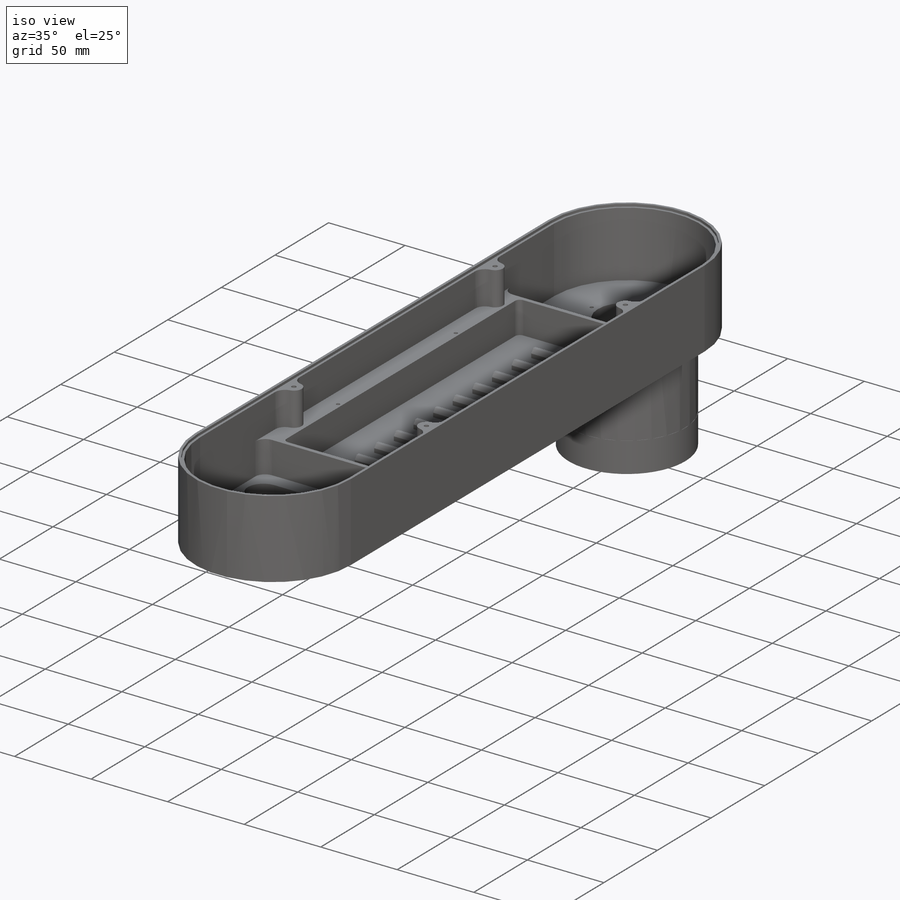
[diagram: iso view]
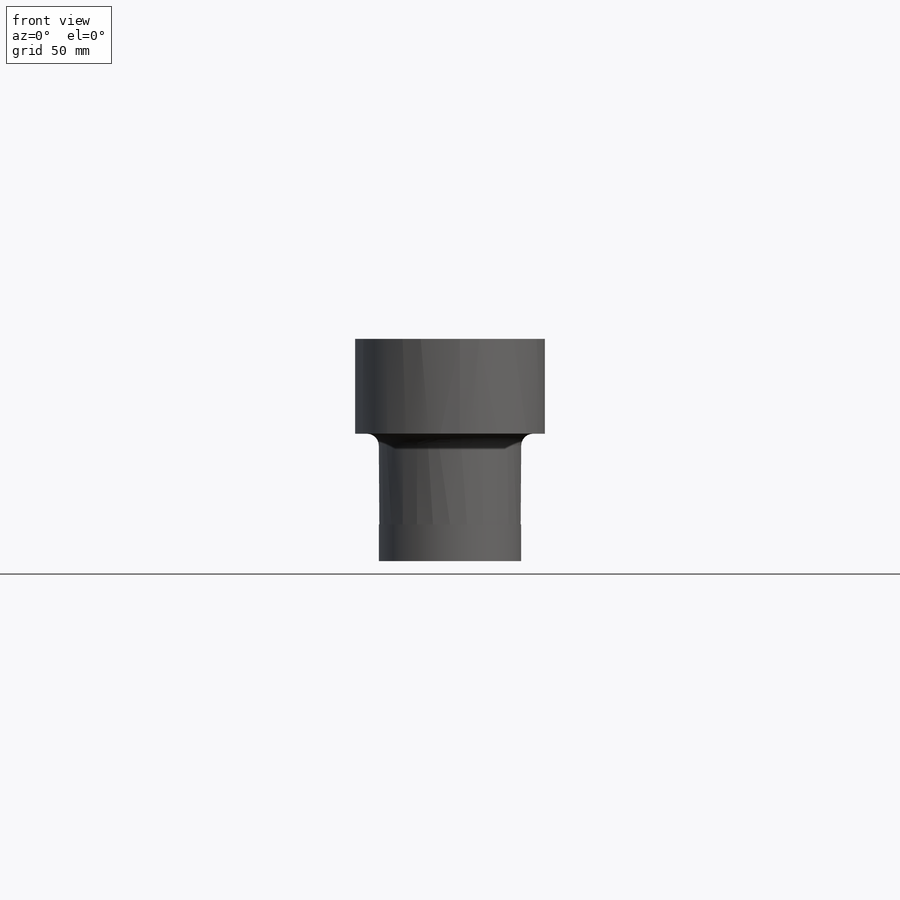
[diagram: front view]
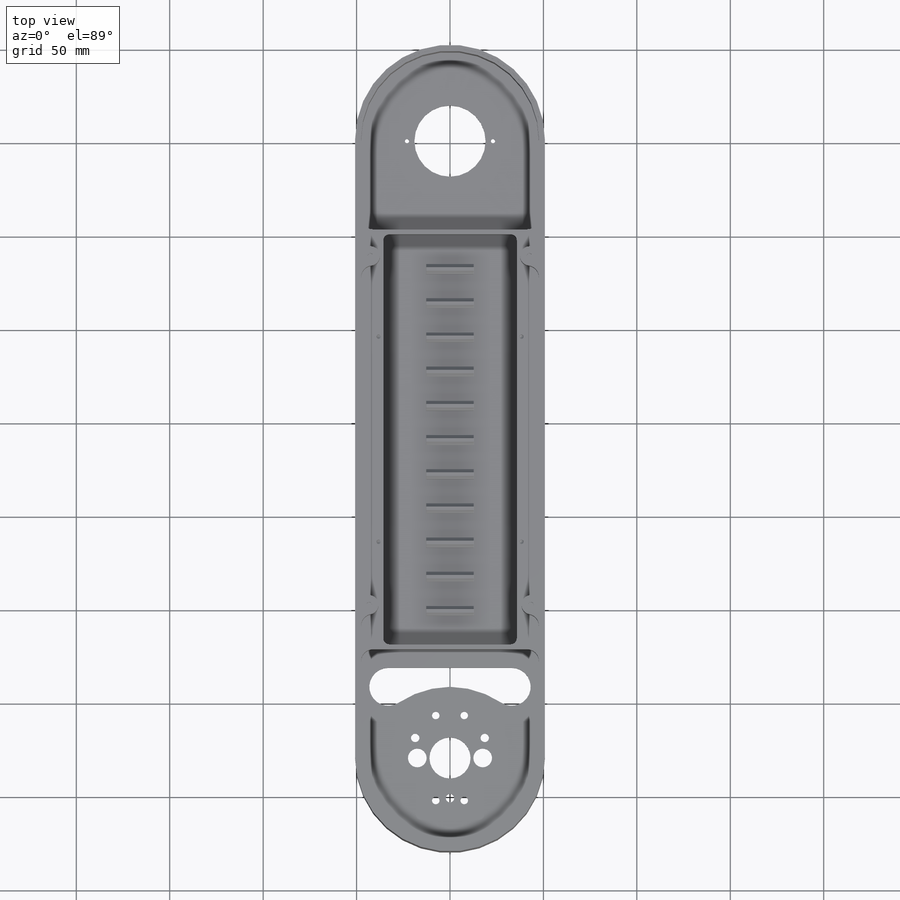
[diagram: top view]
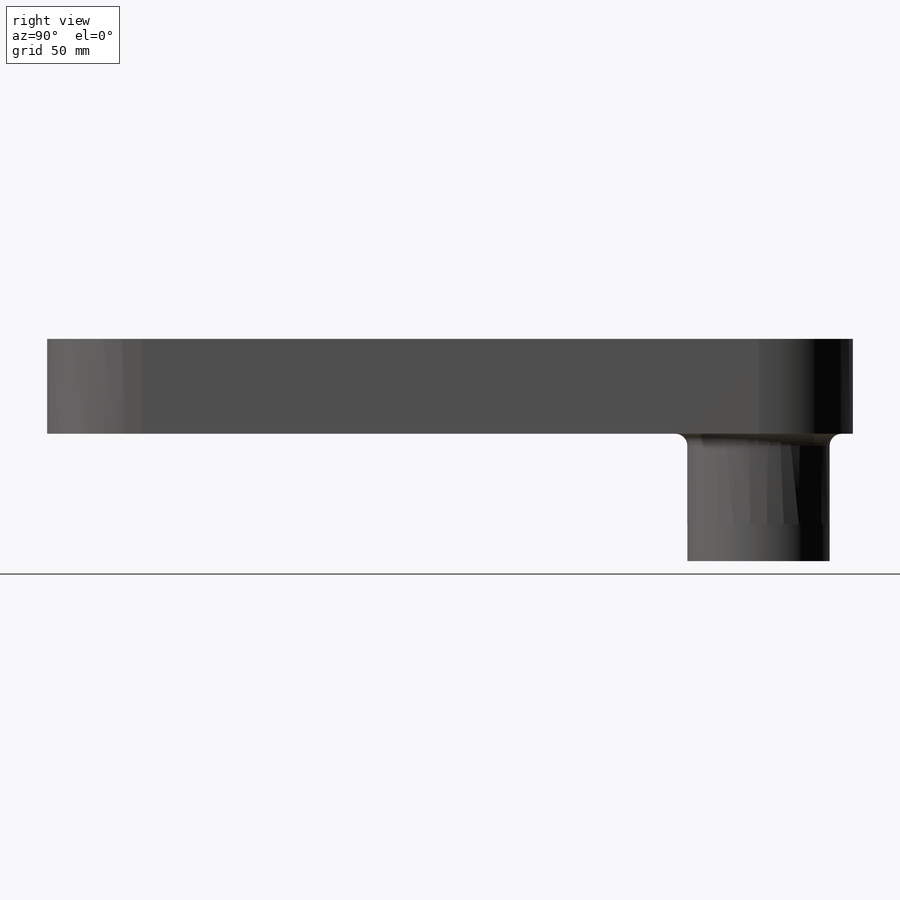
[diagram: right view]
SOLIDWORKS PART (.sldprt)
format: sldprt  version: not decoded by parser v0  size: 1,541,632 bytes
history: native  units: mm
features: sketch x26, thread x15, extrude x11, cut_extrude x10, fillet x8, plane x4, boolean_combine x2, mirror x2, material x1, shell x1, chamfer x1, hole x1, pattern_linear x1, move_body x1 + 1 further entry (+16 scaffold rows collapsed; 5 parser-record rows omitted)
feature tree (106):
  scaffold x16  (default folders/planes/origin — collapsed)
  material  "ABS"
  sketch  "Sketch1"  dims[D1=69.85mm D2=3.175mm]
  extrude  "Boss-Extrude1"  Depth=51.435mm
  sketch  "Sketch6"  dims[D1=0.0mm D2=0.0mm]
  extrude  "Boss-Extrude5"  Depth=6.096mm
  plane  "Plane2"  Offset=29.21mm
  sketch  "Sketch12"  dims[D1=50.8mm D2=0.0mm]
  extrude  "Boss-Extrude8"  [1 undecoded]
  sketch  "Sketch2"  dims[D1=38.1mm D2=0.0mm]
  extrude  "Boss-Extrude2"  Depth=6.35mm
  plane  "Plane1"  Offset=24.765mm
  sketch  "Sketch4"  dims[D1=53.8988mm]
  cut_extrude  "Cut-Extrude1"  Depth=1.7272mm
  sketch  "Sketch5"  dims[D1=2.2606mm D2=46.0248mm D3=23.0124mm D4=6.35mm D5=3.175mm D6=3.175mm]
  cut_extrude  "Cut-Extrude5"  [1 undecoded]
  thread  "Cosmetic Thread1"  Diameter=2.8448mm  [1 undecoded]
  thread  "Cosmetic Thread2"  Diameter=2.8448mm  [1 undecoded]
  sketch  "Sketch7"  dims[c1.D1=101.6mm c1.D2=101.6mm c1.D4=50.8mm c2.D2=330.2mm c2.D5=101.6mm c2.D3=0.0mm]
  extrude  "Boss-Extrude6 - Length"  Depth=44.45mm
  shell  "Shell3"  Thickness=3.175mm
  sketch  "Sketch11"  dims[D1=0.0mm]
  cut_extrude  "Cut-Extrude4"  [1 undecoded]
  boolean_combine  "Combine2"
  sketch  "Sketch13"  dims[D1=22.0mm D2=43.0mm D3=4.5mm D5=35.0mm D6=12.0mm D7=12.0mm D8=~10.74999mm D4=3.0]
  cut_extrude  "Cut-Extrude6"  [1 undecoded]
  sketch  "Sketch15"  dims[D1=0.0mm D2=0.0mm D19=3.5mm D5=1.0mm D6=2.54mm D7=5.0mm]
  chamfer  "Chamfer1"  Distance=2.3mm Angle=45deg
  sketch  "Sketch16"  dims[c1.D1=4.0386mm c1.D2=~15.240339mm c2.D2=~0.381966deg c3.D2=~22.758406mm c3.D3=7.62mm]
  cut_extrude  "Cut-Extrude7"  [1 undecoded]
  thread  "Cosmetic Thread3"  Diameter=4.826mm  [1 undecoded]
  thread  "Cosmetic Thread4"  Diameter=4.826mm  [1 undecoded]
  thread  "Cosmetic Thread5"  Diameter=4.826mm  [1 undecoded]
  thread  "Cosmetic Thread6"  Diameter=4.826mm  [1 undecoded]
  sketch  "Sketch17"
  extrude  "Boss-Extrude9"  Depth=6.858mm
  sketch  "Sketch18"
  sketch  "Sketch19"  dims[D1=20.32mm D2=33.02mm D3=38.1mm]
  cut_extrude  "Cut-Extrude8"  Depth=2.54mm
  sketch  "Sketch20"  dims[D1=3.175mm D2=6.985mm D3=50.8mm]
  extrude  "Boss-Extrude10"  Depth=4.572mm
  hole  "#4-40 Tapped Hole1"  Diameter=2.2606mm Depth=7.62mm
  sketch  "Sketch22"
  sketch  "Sketch21"  dims[hole-wizard template sketch: 50 standard entries collapsed; hole parameters above]
  thread  "Hole Thread1"  Diameter=5.588mm  [1 undecoded]
  pattern_linear  "LPattern1"  Count1=2 Count2=1 Spacing1=42.545mm Spacing2=2.54mm
  mirror  "Mirror1"
  fillet  "Fillet1"  Radius=50.8mm
  sketch  "Sketch23"
  sketch  "Sketch24"  dims[D1=6.35mm D2=66.04mm D3=30.48mm D4=30.48mm]
  cut_extrude  "Cut-Extrude9"  [1 undecoded]
  sketch  "Sketch25"  dims[D1=31.75mm D2=31.75mm D3=38.1mm D4=50.8mm D5=6.35mm D6=9.0]
  cut_extrude  "Cut-Extrude10"  [1 undecoded]
  sketch  "Sketch27"  dims[D1=0.0mm D2=1.651mm]
  cut_extrude  "Cut-Extrude11"  Depth=1.651mm
  sketch  "Sketch28"  dims[c1.D1=9.398mm c1.D2=10.16mm c1.D3=19.05mm c1.D4=10.16mm c1.D5=10.16mm c1.D6=57.15mm c2.D3=76.2mm]
  extrude  "Boss-Extrude11"  [1 undecoded]
  mirror  "Mirror2"
  sketch  "Sketch29"  dims[D1=2.8448mm D4=2.8448mm D2=5.08mm D3=5.08mm D5=~5.091298mm D6=5.08mm]
  cut_extrude  "Cut-Extrude12"  [1 undecoded]
  thread  "Cosmetic Thread7"  Diameter=5.588mm  [1 undecoded]
  thread  "Cosmetic Thread8"  Diameter=5.588mm  [1 undecoded]
  thread  "Cosmetic Thread9"  Diameter=5.588mm  [1 undecoded]
  thread  "Cosmetic Thread10"  Diameter=5.588mm  [1 undecoded]
  "6621_holder_10"
  parser-record x5  (decoder bookkeeping rows leaked as tree rows — omitted from the tree; the rows remain in map.json)
  thread  "Hole Thread1-6621_holder_10"  Diameter=5.588mm  [1 undecoded]
  thread  "Hole Thread2-6621_holder_10"  Diameter=5.588mm  [1 undecoded]
  thread  "Hole Thread3-6621_holder_10"  Diameter=5.588mm  [1 undecoded]
  thread  "Hole Thread4-6621_holder_10"  Diameter=5.588mm  [1 undecoded]
  move_body  "Body-Move/Copy2"
  boolean_combine  "Combine3"
  sketch  "Sketch30"  dims[D1=0.0mm D2=0.0mm]
  extrude  "Boss-Extrude12"  [1 undecoded]
  sketch  "Sketch31"
  extrude  "Boss-Extrude13"  [1 undecoded]
  fillet  "Fillet2"  Radius=3.175mm
  fillet  "Fillet3"  [1 undecoded]
  fillet  "Fillet4"  [1 undecoded]
  fillet  "Fillet5"  [1 undecoded]
  fillet  "Fillet9"  [1 undecoded]
  fillet  "Fillet8"  Radius=6.35mm
  fillet  "Fillet10"  Radius=6.35mm
  plane  "Plane3"  Offset=12.7mm
  plane  "Plane4"  Offset=3.175mm
  sketch  "Sketch32"  dims[D1=0.0mm]
  extrude  "Boss-Extrude14"  Depth=16.51mm
decode coverage: 54 of 79 modeling features carry decoded parameters; 1 rows unclassified (native names shown)
note: ~ marks probable driven/reference dimensions
note: 30 parameter values undecoded
summary: no parameter record found for 15 features
note: suppression state not decoded; provenance and decode notes live in map.json
